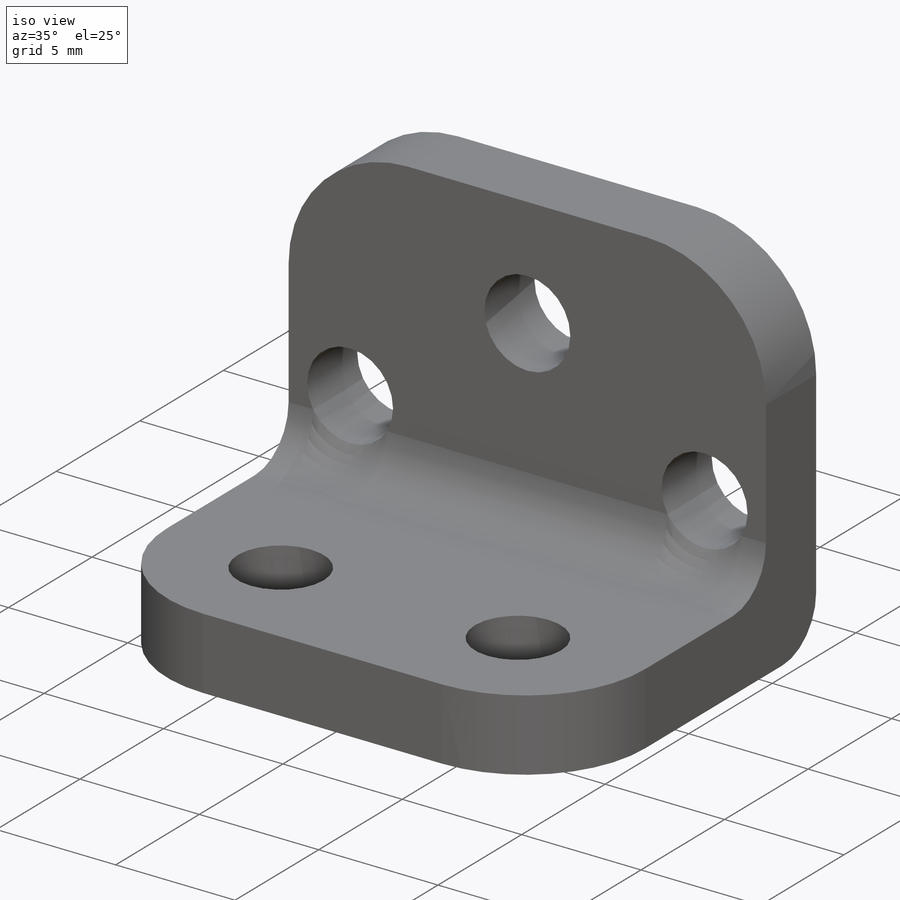
[diagram: iso view]
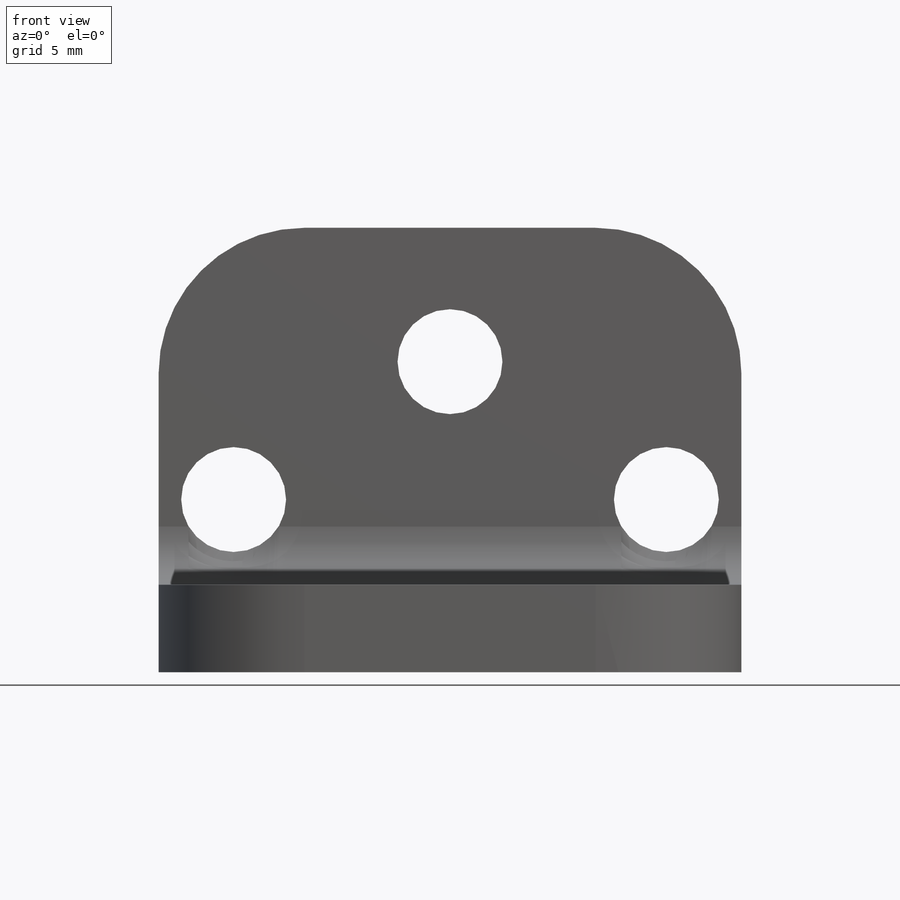
[diagram: front view]
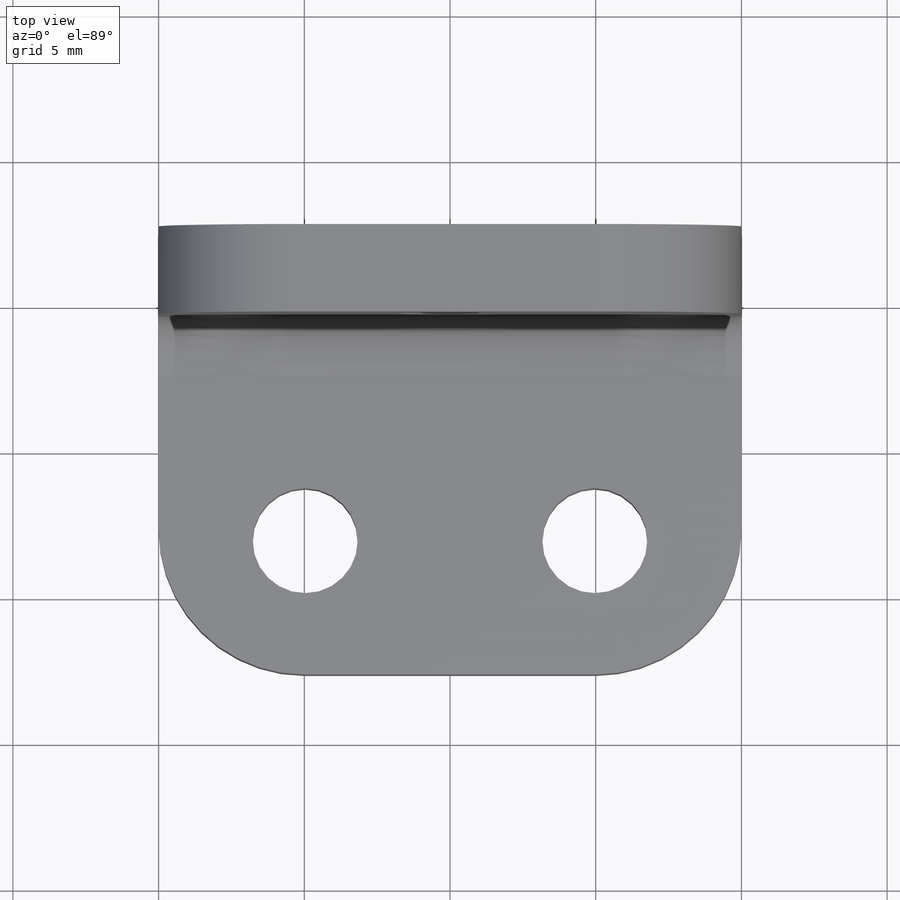
[diagram: top view]
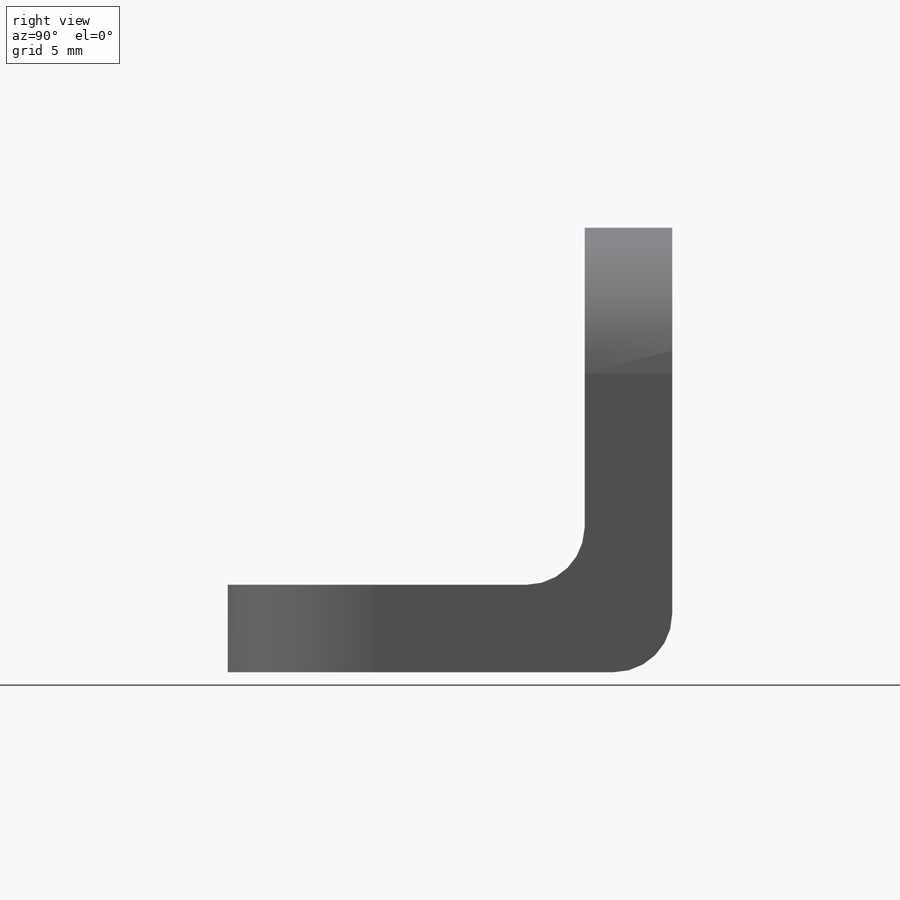
[diagram: right view]
SOLIDWORKS PART (.sldprt)
format: sldprt  version: not decoded by parser v0  size: 237,056 bytes
history: native  units: mm
features: sketch x4, plane x3, extrude x2, cut_extrude x2, fillet x2, material x1 (+8 scaffold rows collapsed)
feature tree (22):
  scaffold x8  (default folders/planes/origin — collapsed)
  material  "Material <sin especificar>"
  plane  "Alzado"
  plane  "Planta"
  plane  "Vista lateral"
  sketch  "Croquis1"  dims[D1=20.0mm D2=15.25mm]
  extrude  "Saliente-Extruir1"  Depth=3mm
  sketch  "Croquis2"  dims[D1=3.0mm]
  extrude  "Saliente-Extruir2"  Depth=12.25mm
  sketch  "Croquis3"  dims[D1=3.6mm D2=~4.59375mm]
  cut_extrude  "Cortar-Extruir1"  Depth=20mm
  sketch  "Croquis4"  dims[c1.D1=3.6mm c1.D3=21.0mm c1.D2=~4.59375mm c1.D4=1.5mm c1.D5=15.25mm c2.D5=45.0deg]
  cut_extrude  "Cortar-Extruir2"  Depth=20mm
  fillet  "Redondeo1"  Radius=5mm
  fillet  "Redondeo2"  Radius=2mm
decode coverage: 10 of 10 modeling features carry decoded parameters
note: ~ marks probable driven/reference dimensions
note: suppression state not decoded; provenance and decode notes live in map.json
